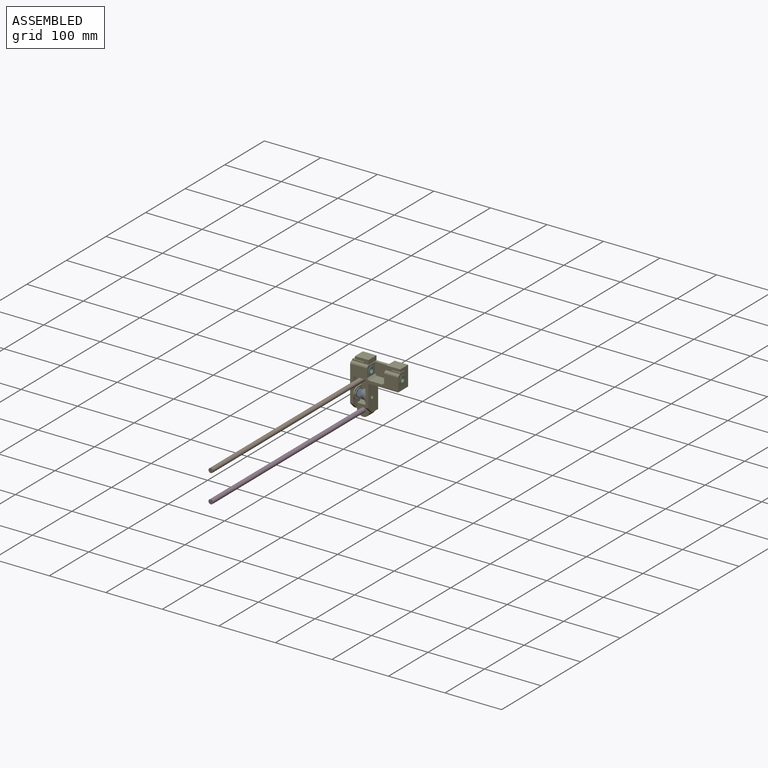
[diagram: assembled view]
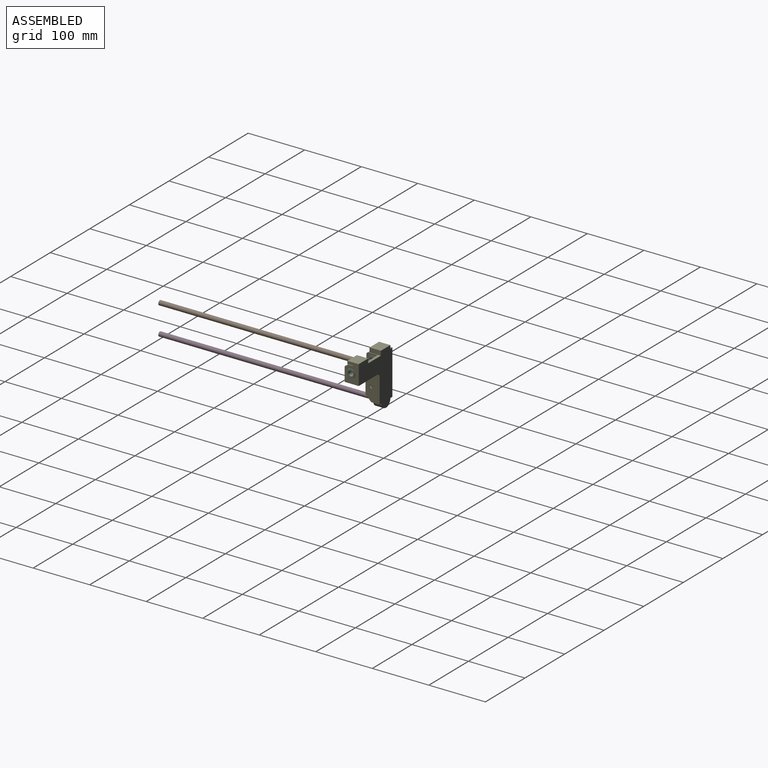
[diagram: assembled view, second angle]
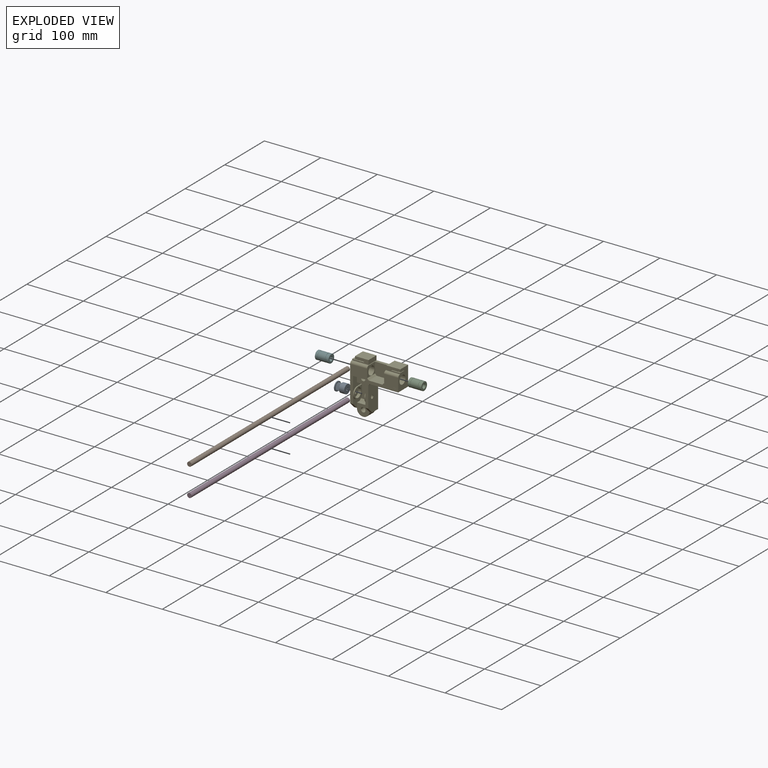
[diagram: exploded view]
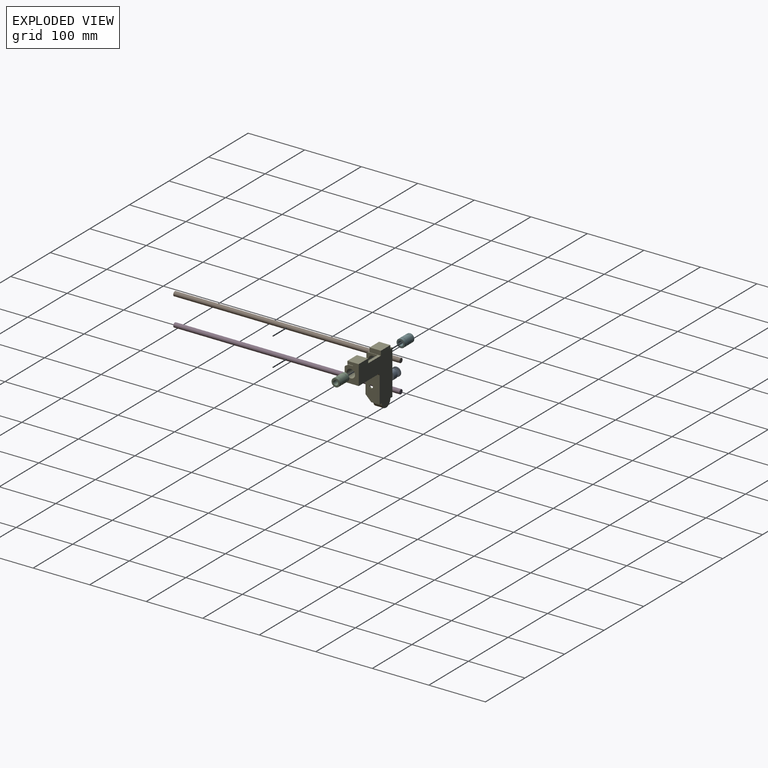
[diagram: exploded view, second angle]
ASSEMBLY  parts=6 mates=2
PART A: 128 faces, bbox 16x16x18 mm
  f0: cylinder r=1mm len=7.5mm, axis (0,0,-1), area 1.9mm2, adj f1,f119,f120,f123
  f1: cylinder r=0.15mm len=7.5mm, axis (0,0,-1), area 1.4mm2, adj f0,f2,f120,f123
  f2: cylinder r=6mm len=7.5mm, axis (0,0,-1), area 3.3mm2, adj f1,f3,f120,f123
  f3: cylinder r=0.15mm len=7.5mm, axis (0,0,-1), area 1.4mm2, adj f2,f4,f120,f123
  f4: cylinder r=1mm len=7.5mm, axis (0,0,-1), area 1.9mm2, adj f3,f5,f120,f123
  f5: cylinder r=0.56mm len=7.5mm, axis (0,0,-1), area 9.8mm2, adj f4,f6,f120,f123
  f6: cylinder r=1mm len=7.5mm, axis (0,0,-1), area 1.9mm2, adj f5,f7,f120,f123
  f7: cylinder r=0.15mm len=7.5mm, axis (0,0,-1), area 1.4mm2, adj f6,f8,f120,f123
  f8: cylinder r=6mm len=7.5mm, axis (0,0,-1), area 3.3mm2, adj f7,f9,f120,f123
  f9: cylinder r=0.15mm len=7.5mm, axis (0,0,-1), area 1.4mm2, adj f8,f10,f120,f123
  f10: cylinder r=1mm len=7.5mm, axis (0,0,-1), area 1.9mm2, adj f9,f11,f120,f123
  f11: cylinder r=0.56mm len=7.5mm, axis (0,0,-1), area 9.8mm2, adj f10,f12,f120,f123
  f12: cylinder r=1mm len=7.5mm, axis (0,0,-1), area 1.9mm2, adj f11,f13,f120,f123
  f13: cylinder r=0.15mm len=7.5mm, axis (0,0,-1), area 1.4mm2, adj f12,f14,f120,f123
  f14: cylinder r=6mm len=7.5mm, axis (0,0,-1), area 3.3mm2, adj f13,f15,f120,f123
  f15: cylinder r=0.15mm len=7.5mm, axis (0,0,-1), area 1.4mm2, adj f14,f16,f120,f123
  f16: cylinder r=1mm len=7.5mm, axis (0,0,-1), area 1.9mm2, adj f15,f17,f120,f123
  f17: cylinder r=0.56mm len=7.5mm, axis (0,0,-1), area 9.8mm2, adj f16,f18,f120,f123
  f18: cylinder r=1mm len=7.5mm, axis (0,0,-1), area 1.9mm2, adj f17,f19,f120,f123
  f19: cylinder r=0.15mm len=7.5mm, axis (0,0,-1), area 1.4mm2, adj f18,f20,f120,f123
  f20: cylinder r=6mm len=7.5mm, axis (0,0,-1), area 3.3mm2, adj f19,f21,f120,f123
  f21: cylinder r=0.15mm len=7.5mm, axis (0,0,-1), area 1.4mm2, adj f20,f22,f120,f123
  f22: cylinder r=1mm len=7.5mm, axis (0,0,-1), area 1.9mm2, adj f21,f23,f120,f123
  f23: cylinder r=0.56mm len=7.5mm, axis (0,0,-1), area 9.8mm2, adj f22,f24,f120,f123
  f24: cylinder r=1mm len=7.5mm, axis (0,0,-1), area 1.9mm2, adj f23,f25,f120,f123
  f25: cylinder r=0.15mm len=7.5mm, axis (0,0,-1), area 1.4mm2, adj f24,f26,f120,f123
  f26: cylinder r=6mm len=7.5mm, axis (0,0,-1), area 2.8mm2, adj f25,f27,f120,f123
  f27: cylinder r=0.15mm len=7.5mm, axis (0,0,-1), area 2mm2, adj f26,f28,f120,f123
  f28: cylinder r=1mm len=7.5mm, axis (0,0,-1), area 1.9mm2, adj f27,f29,f120,f123
  f29: cylinder r=0.56mm len=7.5mm, axis (0,0,-1), area 9.8mm2, adj f28,f30,f120,f123
  f30: cylinder r=1mm len=7.5mm, axis (0,0,-1), area 1.9mm2, adj f29,f31,f120,f123
  f31: cylinder r=0.15mm len=7.5mm, axis (0,0,-1), area 1.4mm2, adj f30,f32,f120,f123
  f32: cylinder r=6mm len=7.5mm, axis (0,0,-1), area 3.3mm2, adj f31,f33,f120,f123
  f33: cylinder r=0.15mm len=7.5mm, axis (0,0,-1), area 1.4mm2, adj f32,f34,f120,f123
  f34: cylinder r=1mm len=7.5mm, axis (0,0,-1), area 1.9mm2, adj f33,f35,f120,f123
  f35: cylinder r=0.56mm len=7.5mm, axis (0,0,-1), area 9.8mm2, adj f34,f36,f120,f123
  f36: cylinder r=1mm len=7.5mm, axis (0,0,-1), area 1.9mm2, adj f35,f37,f120,f123
  f37: cylinder r=0.15mm len=7.5mm, axis (0,0,-1), area 1.4mm2, adj f36,f38,f120,f123
  f38: cylinder r=6mm len=7.5mm, axis (0,0,-1), area 3.3mm2, adj f37,f39,f120,f123
  f39: cylinder r=0.15mm len=7.5mm, axis (0,0,-1), area 1.4mm2, adj f38,f40,f120,f123
  f40: cylinder r=1mm len=7.5mm, axis (0,0,-1), area 1.9mm2, adj f39,f41,f120,f123
  f41: cylinder r=0.56mm len=7.5mm, axis (0,0,-1), area 9.8mm2, adj f40,f42,f120,f123
  f42: cylinder r=1mm len=7.5mm, axis (0,0,-1), area 1.9mm2, adj f41,f43,f120,f123
  f43: cylinder r=0.15mm len=7.5mm, axis (0,0,-1), area 1.4mm2, adj f42,f44,f120,f123
  f44: cylinder r=6mm len=7.5mm, axis (0,0,-1), area 3.3mm2, adj f43,f45,f120,f123
  f45: cylinder r=0.15mm len=7.5mm, axis (0,0,-1), area 1.4mm2, adj f44,f46,f120,f123
  f46: cylinder r=1mm len=7.5mm, axis (0,0,-1), area 1.9mm2, adj f45,f47,f120,f123
  f47: cylinder r=0.56mm len=7.5mm, axis (0,0,-1), area 9.8mm2, adj f46,f48,f120,f123
  f48: cylinder r=1mm len=7.5mm, axis (0,0,-1), area 1.9mm2, adj f47,f49,f120,f123
  f49: cylinder r=0.15mm len=7.5mm, axis (0,0,-1), area 1.4mm2, adj f48,f50,f120,f123
  f50: cylinder r=6mm len=7.5mm, axis (0,0,-1), area 3.3mm2, adj f49,f51,f120,f123
  f51: cylinder r=0.15mm len=7.5mm, axis (0,0,-1), area 1.4mm2, adj f50,f52,f120,f123
  f52: cylinder r=1mm len=7.5mm, axis (0,0,-1), area 1.9mm2, adj f51,f53,f120,f123
  f53: cylinder r=0.56mm len=7.5mm, axis (0,0,-1), area 9.8mm2, adj f52,f54,f120,f123
  f54: cylinder r=1mm len=7.5mm, axis (0,0,-1), area 1.9mm2, adj f53,f55,f120,f123
  f55: cylinder r=0.15mm len=7.5mm, axis (0,0,-1), area 1.4mm2, adj f54,f56,f120,f123
  f56: cylinder r=6mm len=7.5mm, axis (0,0,-1), area 3.3mm2, adj f55,f57,f120,f123
  f57: cylinder r=0.15mm len=7.5mm, axis (0,0,-1), area 1.4mm2, adj f56,f58,f120,f123
  f58: cylinder r=1mm len=7.5mm, axis (0,0,-1), area 1.9mm2, adj f57,f59,f120,f123
  f59: cylinder r=0.56mm len=7.5mm, axis (0,0,-1), area 9.8mm2, adj f58,f60,f120,f123
  f60: cylinder r=1mm len=7.5mm, axis (0,0,-1), area 1.9mm2, adj f59,f61,f120,f123
  f61: cylinder r=0.15mm len=7.5mm, axis (0,0,-1), area 1.4mm2, adj f60,f62,f120,f123
  f62: cylinder r=6mm len=7.5mm, axis (0,0,-1), area 3.3mm2, adj f61,f63,f120,f123
  f63: cylinder r=0.15mm len=7.5mm, axis (0,0,-1), area 1.4mm2, adj f62,f64,f120,f123
  f64: cylinder r=1mm len=7.5mm, axis (0,0,-1), area 1.9mm2, adj f63,f65,f120,f123
  f65: cylinder r=0.56mm len=7.5mm, axis (0,0,-1), area 9.8mm2, adj f64,f66,f120,f123
  f66: cylinder r=1mm len=7.5mm, axis (0,0,-1), area 1.9mm2, adj f65,f67,f120,f123
  f67: cylinder r=0.15mm len=7.5mm, axis (0,0,-1), area 1.4mm2, adj f66,f68,f120,f123
  f68: cylinder r=6mm len=7.5mm, axis (0,0,-1), area 3.3mm2, adj f67,f69,f120,f123
  f69: cylinder r=0.15mm len=7.5mm, axis (0,0,-1), area 1.4mm2, adj f68,f70,f120,f123
  f70: cylinder r=1mm len=7.5mm, axis (0,0,-1), area 1.9mm2, adj f69,f71,f120,f123
  f71: cylinder r=0.56mm len=7.5mm, axis (0,0,-1), area 9.8mm2, adj f70,f72,f120,f123
  f72: cylinder r=1mm len=7.5mm, axis (0,0,-1), area 1.9mm2, adj f71,f73,f120,f123
  f73: cylinder r=0.15mm len=7.5mm, axis (0,0,-1), area 1.4mm2, adj f72,f74,f120,f123
  f74: cylinder r=6mm len=7.5mm, axis (0,0,-1), area 3.3mm2, adj f73,f75,f120,f123
  f75: cylinder r=0.15mm len=7.5mm, axis (0,0,-1), area 1.4mm2, adj f74,f76,f120,f123
  f76: cylinder r=1mm len=7.5mm, axis (0,0,-1), area 1.9mm2, adj f75,f77,f120,f123
  f77: cylinder r=0.56mm len=7.5mm, axis (0,0,-1), area 9.8mm2, adj f76,f78,f120,f123
  f78: cylinder r=1mm len=7.5mm, axis (0,0,-1), area 1.9mm2, adj f77,f79,f120,f123
  f79: cylinder r=0.15mm len=7.5mm, axis (0,0,-1), area 1.4mm2, adj f78,f80,f120,f123
  f80: cylinder r=6mm len=7.5mm, axis (0,0,-1), area 3.3mm2, adj f79,f81,f120,f123
  f81: cylinder r=0.15mm len=7.5mm, axis (0,0,-1), area 1.4mm2, adj f80,f82,f120,f123
  f82: cylinder r=1mm len=7.5mm, axis (0,0,-1), area 1.9mm2, adj f81,f83,f120,f123
  f83: cylinder r=0.56mm len=7.5mm, axis (0,0,-1), area 9.8mm2, adj f82,f84,f120,f123
  f84: cylinder r=1mm len=7.5mm, axis (0,0,-1), area 1.9mm2, adj f83,f85,f120,f123
  f85: cylinder r=0.15mm len=7.5mm, axis (0,0,-1), area 1.4mm2, adj f84,f86,f120,f123
  f86: cylinder r=6mm len=7.5mm, axis (0,0,-1), area 3.3mm2, adj f85,f87,f120,f123
  f87: cylinder r=0.15mm len=7.5mm, axis (0,0,-1), area 1.4mm2, adj f86,f88,f120,f123
  f88: cylinder r=1mm len=7.5mm, axis (0,0,-1), area 1.9mm2, adj f87,f89,f120,f123
  f89: cylinder r=0.56mm len=7.5mm, axis (0,0,-1), area 9.8mm2, adj f88,f90,f120,f123
  f90: cylinder r=1mm len=7.5mm, axis (0,0,-1), area 1.9mm2, adj f89,f91,f120,f123
  f91: cylinder r=0.15mm len=7.5mm, axis (0,0,-1), area 1.4mm2, adj f90,f92,f120,f123
  f92: cylinder r=6mm len=7.5mm, axis (0,0,-1), area 3.3mm2, adj f91,f93,f120,f123
  f93: cylinder r=0.15mm len=7.5mm, axis (0,0,-1), area 1.4mm2, adj f92,f94,f120,f123
  f94: cylinder r=1mm len=7.5mm, axis (0,0,-1), area 1.9mm2, adj f93,f95,f120,f123
  f95: cylinder r=0.56mm len=7.5mm, axis (0,0,-1), area 9.8mm2, adj f94,f96,f120,f123
  f96: cylinder r=1mm len=7.5mm, axis (0,0,-1), area 1.9mm2, adj f95,f97,f120,f123
  f97: cylinder r=0.15mm len=7.5mm, axis (0,0,-1), area 1.4mm2, adj f96,f98,f120,f123
  f98: cylinder r=6mm len=7.5mm, axis (0,0,-1), area 3.3mm2, adj f97,f99,f120,f123
  f99: cylinder r=0.15mm len=7.5mm, axis (0,0,-1), area 1.4mm2, adj f98,f100,f120,f123
  f100: cylinder r=1mm len=7.5mm, axis (0,0,-1), area 1.9mm2, adj f99,f101,f120,f123
  f101: cylinder r=0.56mm len=7.5mm, axis (0,0,-1), area 9.8mm2, adj f100,f102,f120,f123
  f102: cylinder r=1mm len=7.5mm, axis (0,0,-1), area 1.9mm2, adj f101,f103,f120,f123
  f103: cylinder r=0.15mm len=7.5mm, axis (0,0,-1), area 1.4mm2, adj f102,f104,f120,f123
  f104: cylinder r=6mm len=7.5mm, axis (0,0,-1), area 3.3mm2, adj f103,f105,f120,f123
  f105: cylinder r=0.15mm len=7.5mm, axis (0,0,-1), area 1.4mm2, adj f104,f106,f120,f123
  f106: cylinder r=1mm len=7.5mm, axis (0,0,-1), area 1.9mm2, adj f105,f107,f120,f123
  f107: cylinder r=0.56mm len=7.5mm, axis (0,0,-1), area 9.8mm2, adj f106,f108,f120,f123
  f108: cylinder r=1mm len=7.5mm, axis (0,0,-1), area 1.9mm2, adj f107,f109,f120,f123
  f109: cylinder r=0.15mm len=7.5mm, axis (0,0,-1), area 1.4mm2, adj f108,f110,f120,f123
  f110: cylinder r=6mm len=7.5mm, axis (0,0,-1), area 3.3mm2, adj f109,f111,f120,f123
  f111: cylinder r=0.15mm len=7.5mm, axis (0,0,-1), area 1.4mm2, adj f110,f112,f120,f123
  f112: cylinder r=1mm len=7.5mm, axis (0,0,-1), area 1.9mm2, adj f111,f113,f120,f123
  f113: cylinder r=0.56mm len=7.5mm, axis (0,0,-1), area 9.8mm2, adj f112,f114,f120,f123
  f114: cylinder r=1mm len=7.5mm, axis (0,0,-1), area 1.9mm2, adj f113,f115,f120,f123
  f115: cylinder r=0.15mm len=7.5mm, axis (0,0,-1), area 1.4mm2, adj f114,f116,f120,f123
  f116: cylinder r=6mm len=7.5mm, axis (0,0,-1), area 3.3mm2, adj f115,f117,f120,f123
  f117: cylinder r=0.15mm len=7.5mm, axis (0,0,-1), area 1.4mm2, adj f116,f118,f120,f123
  f118: cylinder r=1mm len=7.5mm, axis (0,0,-1), area 1.9mm2, adj f117,f119,f120,f123
  f119: cylinder r=0.56mm len=7.5mm, axis (0,0,-1), area 9.8mm2, adj f0,f118,f120,f123
  f120: plane 16x16mm, normal (0,0,-1), area 102.3mm2, adj f0,f1,f2,f3,f4,f5,f6,f7
  f121: cylinder r=8mm len=16mm, axis (0,0,-1), area 445.3mm2, adj f120,f122,f127
  f122: plane 16x16mm, normal (0,0,1), area 181.4mm2, adj f121,f126
  f123: plane 16x16mm, normal (0,0,1), area 102.3mm2, adj f0,f1,f2,f3,f4,f5,f6,f7
  f124: cylinder r=8mm len=16mm, axis (0,0,1), area 75.4mm2, adj f123,f125
  f125: plane 16x16mm, normal (0,0,-1), area 181.4mm2, adj f124,f126
  f126: cylinder r=2.5mm len=18mm, axis (0,0,-1), area 275.3mm2, adj f122,f125,f127
  f127: cylinder r=1.5mm len=6mm, axis (1,0,0), area 53.5mm2, adj f121,f126
PART B: 3 faces, bbox 8x400x8 mm
  f0: cylinder r=4mm len=400mm, axis (0,1,0), area 10053.1mm2, adj f1,f2
  f1: plane 8x8mm, normal (0,-1,0), area 50.3mm2, adj f0
  f2: plane 8x8mm, normal (0,1,0), area 50.3mm2, adj f0
PART C: 16 faces, bbox 16.2x16.2x24 mm
  f0: cylinder r=7.5mm len=15mm, axis (0,0,-1), area 193.2mm2, adj f6,f14
  f1: cylinder r=7.5mm len=15mm, axis (0,0,-1), area 603.2mm2, adj f11,f13
  f2: cylinder r=4mm len=23.2mm, axis (0,0,-1), area 583.1mm2, adj f8,f9
  f3: cylinder r=7.5mm len=15mm, axis (0,0,-1), area 193.2mm2, adj f7,f10
  f4: plane 14.2x14.2mm, normal (0,0,1), area 97.5mm2, adj f6,f9
  f5: plane 14.2x14.2mm, normal (0,0,-1), area 97.5mm2, adj f7,f8
  f6: torus R=7.1mm, axis (0,0,1), area 29mm2, adj f0,f4
  f7: torus R=7.1mm, axis (0,0,1), area 29mm2, adj f3,f5
  f8: torus R=4.4mm, axis (0,0,1), area 16.4mm2, adj f2,f5
  f9: torus R=4.4mm, axis (0,0,1), area 16.4mm2, adj f2,f4
  f10: plane 15x15mm, normal (0,0,1), area 16.1mm2, adj f3,f12
  f11: plane 15x15mm, normal (0,0,-1), area 16.1mm2, adj f1,f12
  f12: cylinder r=7.15mm len=14.3mm, axis (0,0,-1), area 49.4mm2, adj f10,f11
  f13: plane 15x15mm, normal (0,0,1), area 16.1mm2, adj f1,f15
  f14: plane 15x15mm, normal (0,0,-1), area 16.1mm2, adj f0,f15
  f15: cylinder r=7.15mm len=14.3mm, axis (0,0,-1), area 49.4mm2, adj f13,f14
PART D: same geometry as B
PART E: 167 faces, bbox 85.1x25.1x96 mm
  f0: plane 15.96x10.03mm, normal (0,0,1), area 160.1mm2, adj f70,f108,f121,f162
  f1: plane 16x1.6mm, normal (0,-1,-0.01), area 19.7mm2, adj f14,f18,f19,f20,f21,f22,f23,f24
  f2: plane 31.22x20.01mm, normal (1,0,0), area 280.3mm2, adj f6,f66,f69,f124,f134,f140,f143,f149
  f3: plane 24.8x20.01mm, normal (1,0,0), area 175.2mm2, adj f6,f125,f126,f140,f144,f150,f151,f156
  f4: plane 25x20mm, normal (-1,0,0), area 226.1mm2, adj f6,f124,f132,f133,f134,f136,f137,f157
  f5: plane 32x5mm, normal (0,0,1), area 160mm2, adj f12,f13,f15,f67,f68,f115,f129
  f6: plane 26.16x22mm, normal (0,-1,0), area 493.3mm2, adj f2,f3,f4,f123,f136,f138,f139,f149
  f7: plane 27.17x25mm, normal (1,0,0), area 493.6mm2, adj f8,f13,f70,f120,f122,f128,f129,f130
  f8: plane 50x25mm, normal (0,0,-1), area 1250.1mm2, adj f7,f13,f132,f158
  f9: plane 47x25mm, normal (1,0,0), area 1096.7mm2, adj f10,f13,f132,f145,f148,f158
  f10: plane 15x5mm, normal (0,0,-1), area 75mm2, adj f9,f11,f13,f145
  f11: cylinder r=11mm len=22mm, axis (0,-1,0), area 521.5mm2, adj f10,f13,f125,f141
  f12: plane 30x21.97mm, normal (0,-1,0), area 650.2mm2, adj f5,f63,f127,f135,f159,f160
  f13: plane 90.17x85mm, normal (0,1,0), area 4114.6mm2, adj f5,f7,f8,f9,f10,f11,f14,f15
  f14: plane 21.04x20mm, normal (0,0,1), area 261.4mm2, adj f1,f13,f59,f62,f142,f161
  f15: plane 5x0.03mm, normal (1,0,0), area 0.1mm2, adj f5,f13,f68
  f16: plane 24x5mm, normal (0,1,0.01), area 120mm2, adj f17,f60,f62,f68
  f17: plane 24x0.02mm, normal (0,-0.01,1), area 0.4mm2, adj f16,f58,f60,f62
  f18: plane 10.03x0.8mm, normal (0.92,0,-0.4), area 8.8mm2, adj f1,f19,f22,f59
  f19: plane 10.02x0.8mm, normal (-0.01,0,-1), area 8mm2, adj f1,f18,f20,f59
  f20: plane 10.03x0.8mm, normal (-0.92,0,-0.4), area 8.8mm2, adj f1,f19,f21,f59
  f21: plane 10.04x0.26mm, normal (0,0,-1), area 2.5mm2, adj f1,f20,f27,f59
  f22: plane 10.03x0.25mm, normal (0,0,-1), area 2.5mm2, adj f1,f18,f59,f62
  f23: plane 10.03x0.8mm, normal (0.92,0,-0.4), area 8.8mm2, adj f1,f24,f27,f59
  f24: plane 10.02x0.8mm, normal (-0.01,0,-1), area 8mm2, adj f1,f23,f25,f59
  f25: plane 10.03x0.8mm, normal (-0.92,0,-0.4), area 8.8mm2, adj f1,f24,f26,f59
  f26: plane 10.04x0.26mm, normal (0,0,-1), area 2.5mm2, adj f1,f25,f37,f59
  f27: plane 10.04x0.26mm, normal (0,0,-1), area 2.5mm2, adj f1,f21,f23,f59
  f28: plane 10.03x0.8mm, normal (0.92,0,-0.4), area 8.8mm2, adj f1,f29,f32,f59
  f29: plane 10.02x0.8mm, normal (-0.01,0,-1), area 8mm2, adj f1,f28,f30,f59
  f30: plane 10.03x0.8mm, normal (-0.92,0,-0.4), area 8.8mm2, adj f1,f29,f31,f59
  f31: plane 10.04x0.26mm, normal (0,0,-1), area 2.5mm2, adj f1,f30,f42,f59
  f32: plane 10.04x0.26mm, normal (0,0,-1), area 2.5mm2, adj f1,f28,f36,f59
  f33: plane 10.03x0.8mm, normal (0.92,0,-0.4), area 8.8mm2, adj f1,f34,f37,f59
  f34: plane 10.02x0.8mm, normal (-0.01,0,-1), area 8mm2, adj f1,f33,f35,f59
  f35: plane 10.03x0.8mm, normal (-0.92,0,-0.4), area 8.8mm2, adj f1,f34,f36,f59
  f36: plane 10.04x0.26mm, normal (0,0,-1), area 2.5mm2, adj f1,f32,f35,f59
  f37: plane 10.04x0.26mm, normal (0,0,-1), area 2.5mm2, adj f1,f26,f33,f59
  f38: plane 10.03x0.8mm, normal (0.92,0,-0.4), area 8.8mm2, adj f1,f39,f42,f59
  f39: plane 10.02x0.8mm, normal (-0.01,0,-1), area 8mm2, adj f1,f38,f40,f59
  f40: plane 10.03x0.8mm, normal (-0.92,0,-0.4), area 8.8mm2, adj f1,f39,f41,f59
  f41: plane 10.04x0.26mm, normal (0,0,-1), area 2.5mm2, adj f1,f40,f47,f59
  f42: plane 10.04x0.26mm, normal (0,0,-1), area 2.5mm2, adj f1,f31,f38,f59
  f43: plane 10.03x0.8mm, normal (0.92,0,-0.4), area 8.8mm2, adj f1,f44,f47,f59
  f44: plane 10.02x0.8mm, normal (-0.01,0,-1), area 8mm2, adj f1,f43,f45,f59
  f45: plane 10.03x0.8mm, normal (-0.92,0,-0.4), area 8.8mm2, adj f1,f44,f46,f59
  f46: plane 10.04x0.26mm, normal (0,0,-1), area 2.5mm2, adj f1,f45,f52,f59
  f47: plane 10.04x0.26mm, normal (0,0,-1), area 2.5mm2, adj f1,f41,f43,f59
  f48: plane 10.03x0.8mm, normal (0.92,0,-0.4), area 8.8mm2, adj f1,f49,f52,f59
  f49: plane 10.02x0.8mm, normal (-0.01,0,-1), area 8mm2, adj f1,f48,f50,f59
  f50: plane 10.03x0.8mm, normal (-0.92,0,-0.4), area 8.8mm2, adj f1,f49,f51,f59
  f51: plane 10.04x0.26mm, normal (0,0,-1), area 2.5mm2, adj f1,f50,f57,f59
  f52: plane 10.04x0.26mm, normal (0,0,-1), area 2.5mm2, adj f1,f46,f48,f59
  f53: plane 10.03x0.8mm, normal (0.92,0,-0.4), area 8.8mm2, adj f1,f54,f57,f59
  f54: plane 10.02x0.8mm, normal (-0.01,0,-1), area 8mm2, adj f1,f53,f55,f59
  f55: plane 10.03x0.8mm, normal (-0.92,0,-0.4), area 8.8mm2, adj f1,f54,f56,f59
  f56: plane 10.03x0.25mm, normal (0,0,-1), area 2.5mm2, adj f1,f55,f59,f161
  f57: plane 10.04x0.26mm, normal (0,0,-1), area 2.5mm2, adj f1,f51,f53,f59
  f58: plane 24x2.77mm, normal (0,1,0), area 66.5mm2, adj f17,f60,f61,f62
  f59: plane 29.04x7.89mm, normal (0,-1,0), area 180.5mm2, adj f14,f18,f19,f20,f21,f22,f23,f24
  f60: plane 20.04x7.89mm, normal (1,0,0), area 156.7mm2, adj f16,f17,f58,f59,f61,f67,f68
  f61: plane 24x20mm, normal (0,0,1), area 480mm2, adj f58,f59,f60,f62
  f62: plane 20.04x7.77mm, normal (-1,0,0), area 108.1mm2, adj f1,f13,f14,f16,f17,f22,f58,f59
  f63: plane 19.96x18.97mm, normal (1,0,0), area 193.9mm2, adj f12,f64,f65,f66,f67,f160
  f64: cylinder r=7.58mm len=30mm, axis (1,0,0), area 1427.9mm2, adj f63,f142
  f65: cylinder r=4mm len=30mm, axis (1,0,0), area 187.8mm2, adj f63,f66,f67,f142
  f66: plane 33x17.88mm, normal (0,-1,0), area 535.9mm2, adj f2,f63,f65,f69,f135,f142,f143,f160
  f67: plane 30x15.98mm, normal (0,-0.01,1), area 43.8mm2, adj f5,f59,f60,f63,f65,f142
  f68: plane 24x5.04mm, normal (0,0.01,-1), area 1.3mm2, adj f5,f13,f15,f16,f60,f62
  f69: plane 22.06x9.96mm, normal (0,0,-1), area 219.7mm2, adj f2,f66,f133,f134
  f70: plane 10.04x2.09mm, normal (1,0,0), area 20.6mm2, adj f0,f7,f108,f121
  f71: plane 20x0.04mm, normal (0,0,1), area 0.8mm2, adj f13,f108,f115,f118
  f72: plane 10.03x0.8mm, normal (0.92,0,-0.4), area 8.8mm2, adj f73,f76,f108,f121
  f73: plane 10.02x0.8mm, normal (-0.01,0,-1), area 8mm2, adj f72,f74,f108,f121
  f74: plane 10.03x0.8mm, normal (-0.92,0,-0.4), area 8.8mm2, adj f73,f75,f108,f121
  f75: plane 10.04x0.26mm, normal (0,0,-1), area 2.5mm2, adj f74,f86,f108,f121
  f76: plane 10.04x0.26mm, normal (0,0,-1), area 2.5mm2, adj f72,f90,f108,f121
  f77: plane 10.03x0.8mm, normal (0.92,0,-0.4), area 8.8mm2, adj f78,f81,f108,f121
  f78: plane 10.02x0.8mm, normal (-0.01,0,-1), area 8mm2, adj f77,f79,f108,f121
  f79: plane 10.03x0.8mm, normal (-0.92,0,-0.4), area 8.8mm2, adj f78,f80,f108,f121
  f80: plane 10.03x0.25mm, normal (0,0,-1), area 2.5mm2, adj f79,f108,f116,f121
  f81: plane 10.04x0.26mm, normal (0,0,-1), area 2.5mm2, adj f77,f85,f108,f121
  f82: plane 10.03x0.8mm, normal (0.92,0,-0.4), area 8.8mm2, adj f83,f86,f108,f121
  f83: plane 10.02x0.8mm, normal (-0.01,0,-1), area 8mm2, adj f82,f84,f108,f121
  f84: plane 10.03x0.8mm, normal (-0.92,0,-0.4), area 8.8mm2, adj f83,f85,f108,f121
  f85: plane 10.04x0.26mm, normal (0,0,-1), area 2.5mm2, adj f81,f84,f108,f121
  f86: plane 10.04x0.26mm, normal (0,0,-1), area 2.5mm2, adj f75,f82,f108,f121
  f87: plane 10.03x0.8mm, normal (0.92,0,-0.4), area 8.8mm2, adj f88,f91,f108,f121
  f88: plane 10.02x0.8mm, normal (-0.01,0,-1), area 8mm2, adj f87,f89,f108,f121
  f89: plane 10.03x0.8mm, normal (-0.92,0,-0.4), area 8.8mm2, adj f88,f90,f108,f121
  f90: plane 10.04x0.26mm, normal (0,0,-1), area 2.5mm2, adj f76,f89,f108,f121
  f91: plane 10.04x0.26mm, normal (0,0,-1), area 2.5mm2, adj f87,f95,f108,f121
  f92: plane 10.03x0.8mm, normal (0.92,0,-0.4), area 8.8mm2, adj f93,f96,f108,f121
  f93: plane 10.02x0.8mm, normal (-0.01,0,-1), area 8mm2, adj f92,f94,f108,f121
  f94: plane 10.03x0.8mm, normal (-0.92,0,-0.4), area 8.8mm2, adj f93,f95,f108,f121
  f95: plane 10.04x0.26mm, normal (0,0,-1), area 2.5mm2, adj f91,f94,f108,f121
  f96: plane 10.04x0.26mm, normal (0,0,-1), area 2.5mm2, adj f92,f108,f112,f121
  f97: plane 10.03x0.8mm, normal (0.92,0,-0.4), area 8.8mm2, adj f98,f101,f108,f121
  f98: plane 10.02x0.8mm, normal (-0.01,0,-1), area 8mm2, adj f97,f99,f108,f121
  f99: plane 10.03x0.8mm, normal (-0.92,0,-0.4), area 8.8mm2, adj f98,f100,f108,f121
  f100: plane 10.04x0.26mm, normal (0,0,-1), area 2.5mm2, adj f99,f106,f108,f121
  f101: plane 10.03x0.25mm, normal (0,0,-1), area 2.5mm2, adj f97,f108,f121,f162
  f102: plane 10.03x0.8mm, normal (0.92,0,-0.4), area 8.8mm2, adj f103,f106,f108,f121
  f103: plane 10.02x0.8mm, normal (-0.01,0,-1), area 8mm2, adj f102,f104,f108,f121
  f104: plane 10.03x0.8mm, normal (-0.92,0,-0.4), area 8.8mm2, adj f103,f105,f108,f121
  f105: plane 10.04x0.26mm, normal (0,0,-1), area 2.5mm2, adj f104,f108,f114,f121
  f106: plane 10.04x0.26mm, normal (0,0,-1), area 2.5mm2, adj f100,f102,f108,f121
  f107: plane 24x2.77mm, normal (0,1,0), area 66.5mm2, adj f113,f116,f118,f119
  f108: plane 24.04x7.89mm, normal (0,-1,0), area 169.6mm2, adj f0,f70,f71,f72,f73,f74,f75,f76
  f109: plane 10.03x0.8mm, normal (0.92,0,-0.4), area 8.8mm2, adj f108,f110,f114,f121
  f110: plane 10.02x0.8mm, normal (-0.01,0,-1), area 8mm2, adj f108,f109,f111,f121
  f111: plane 10.03x0.8mm, normal (-0.92,0,-0.4), area 8.8mm2, adj f108,f110,f112,f121
  f112: plane 10.04x0.26mm, normal (0,0,-1), area 2.5mm2, adj f96,f108,f111,f121
  f113: plane 24x20mm, normal (0,0,1), area 480mm2, adj f107,f108,f116,f118
  f114: plane 10.04x0.26mm, normal (0,0,-1), area 2.5mm2, adj f105,f108,f109,f121
  f115: plane 20x2.09mm, normal (-1,0,0), area 40.6mm2, adj f5,f13,f71,f108,f129
  f116: plane 20.04x7.83mm, normal (1,0,0), area 128.1mm2, adj f80,f107,f108,f113,f117,f119,f120,f121
  f117: plane 24x5mm, normal (0,1,0.01), area 120mm2, adj f116,f118,f119,f120
  f118: plane 20.04x7.77mm, normal (-1,0,0), area 116.1mm2, adj f13,f71,f107,f108,f113,f117,f119,f120
  f119: plane 24x0.02mm, normal (0,-0.01,1), area 0.4mm2, adj f107,f116,f117,f118
  f120: plane 24x10mm, normal (0,0.01,-1), area 1.5mm2, adj f7,f13,f116,f117,f118,f121,f122
  f121: plane 16x3.63mm, normal (0,-1,-0.01), area 19.8mm2, adj f0,f70,f72,f73,f74,f75,f76,f77
  f122: plane 5x0.03mm, normal (1,0,0), area 0.1mm2, adj f7,f13,f120
  f123: plane 25x20mm, normal (-1,0,0), area 177.4mm2, adj f6,f125,f126,f132,f137,f138,f145,f156
  f124: plane 22x7mm, normal (-0.01,0,-1), area 154mm2, adj f2,f4,f134,f157
  f125: plane 22x19.96mm, normal (0,-1,0), area 335mm2, adj f3,f11,f123,f126,f165
  f126: plane 22x7mm, normal (0,0,1), area 154mm2, adj f3,f123,f125,f156
  f127: plane 19.96x18.97mm, normal (-1,0,0), area 193.9mm2, adj f12,f128,f129,f130,f131,f159
  f128: cylinder r=7.58mm len=25mm, axis (1,0,0), area 1189.9mm2, adj f7,f127
  f129: plane 25x15.98mm, normal (0,-0.01,1), area 39.5mm2, adj f5,f7,f108,f115,f127,f130
  f130: cylinder r=4mm len=25mm, axis (1,0,0), area 156.5mm2, adj f7,f127,f129,f131
  f131: plane 28x17.88mm, normal (0,-1,0), area 451.6mm2, adj f7,f127,f130,f135,f159
  f132: plane 58x45.2mm, normal (0,-1,0), area 505.9mm2, adj f4,f7,f8,f9,f123,f133,f135,f145
  f133: plane 10x5.2mm, normal (-1,0,0.01), area 52mm2, adj f4,f69,f132,f134,f135
  f134: plane 22.06x14.29mm, normal (0,-1,0), area 259.9mm2, adj f2,f4,f69,f124,f133,f163
  f135: plane 57.94x20mm, normal (0,0,1), area 481.4mm2, adj f7,f12,f66,f131,f132,f133,f159,f160
  f136: plane 9.69x2mm, normal (0,0,1), area 19.4mm2, adj f4,f6,f137,f139
  f137: cylinder r=10mm len=20mm, axis (1,0,0), area 63.4mm2, adj f4,f123,f136,f138,f139
  f138: plane 10x2mm, normal (0,0,-1), area 20mm2, adj f6,f123,f137,f139
  f139: plane 20x20mm, normal (-1,0,0), area 152.2mm2, adj f6,f136,f137,f138,f146
  f140: plane 46x5mm, normal (0,-1,0), area 230mm2, adj f2,f3,f142,f143,f144
  f141: plane 15x5mm, normal (0,0,-1), area 75mm2, adj f11,f13,f142,f144
  f142: plane 78.96x25mm, normal (-1,0,0), area 1700.8mm2, adj f13,f14,f59,f64,f65,f66,f67,f140
  f143: plane 5x0.04mm, normal (0,0,1), area 0.2mm2, adj f2,f66,f140,f142
  f144: plane 10x10mm, normal (0,-0.71,-0.71), area 70.7mm2, adj f3,f140,f141,f142
  f145: plane 10x10mm, normal (0,-0.71,-0.71), area 70.7mm2, adj f9,f10,f123,f132
  f146: cylinder r=8.08mm len=16.15mm, axis (-1,0,0), area 253.7mm2, adj f139,f147
  f147: plane 16.15x16.15mm, normal (-1,0,0), area 176.6mm2, adj f146,f148
  f148: cylinder r=3mm len=6mm, axis (-1,0,0), area 37.7mm2, adj f9,f147
  f149: plane 9.69x2mm, normal (0,0,1), area 19.4mm2, adj f2,f6,f150,f152
  f150: cylinder r=10mm len=20mm, axis (-1,0,0), area 63.4mm2, adj f2,f3,f149,f151,f152
  f151: plane 10x2mm, normal (0,0,-1), area 20mm2, adj f3,f6,f150,f152
  f152: plane 20x20mm, normal (1,0,0), area 152.2mm2, adj f6,f149,f150,f151,f153
  f153: cylinder r=8.08mm len=16.15mm, axis (1,0,0), area 253.7mm2, adj f152,f154
  f154: plane 16.15x16.15mm, normal (1,0,0), area 176.6mm2, adj f153,f155
  f155: cylinder r=3mm len=6mm, axis (-1,0,0), area 37.7mm2, adj f142,f154
  f156: plane 22x3mm, normal (0,-0.71,0.71), area 93.3mm2, adj f3,f6,f123,f126
  f157: plane 22x3.21mm, normal (-0.01,-0.71,-0.71), area 93.3mm2, adj f2,f4,f6,f124
  f158: plane 25x3mm, normal (0.71,0,-0.71), area 106.1mm2, adj f8,f9,f13,f132
  f159: plane 19.96x3mm, normal (-0.71,0,0.71), area 84.7mm2, adj f12,f127,f131,f135
  f160: plane 19.96x3mm, normal (0.71,0,0.71), area 84.7mm2, adj f12,f63,f66,f135
  f161: plane 10.03x0.8mm, normal (-1,0,0), area 8mm2, adj f1,f14,f56,f59
  f162: plane 10.03x0.8mm, normal (1,0,0), area 8mm2, adj f0,f101,f108,f121
  f163: cylinder r=4.07mm len=10mm, axis (0,-1,0), area 256mm2, adj f134,f164
  f164: plane 8.15x8.15mm, normal (0,-1,0), area 52.2mm2, adj f163
  f165: cylinder r=4.07mm len=10mm, axis (0,-1,0), area 256mm2, adj f125,f166
  f166: plane 8.15x8.15mm, normal (0,-1,0), area 52.2mm2, adj f165
PART F: same geometry as C
PLACE A rot(axis=(0.71,0,0.71),180deg) t=(-39.94,-2.59,-8.25)mm
PLACE B rot(axis=(1,0,0),180deg) t=(-32.44,-388.59,16.54)mm
PLACE C rot(axis=(0.71,0,0.71),180deg) t=(12.96,-2.59,32.71)mm
PLACE D rot(axis=(1,0,0),180deg) t=(-32.44,-388.59,-33.46)mm
PLACE E t=(-32.44,11.41,-20.45)mm fixed
PLACE F rot(axis=(0.71,0,0.71),180deg) t=(-42.04,-2.59,32.71)mm
MATE fastened C.f0 <-> E.f64  axis (1,0,0) through (36.56,-2.59,32.71)mm
MATE fastened F.f0 <-> E.f64  axis (1,0,0) through (-18.44,-2.59,32.71)mm
